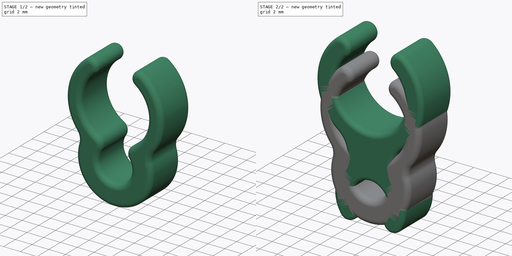
[diagram: build sequence overview — one tinted view per stage of 2, left to right]
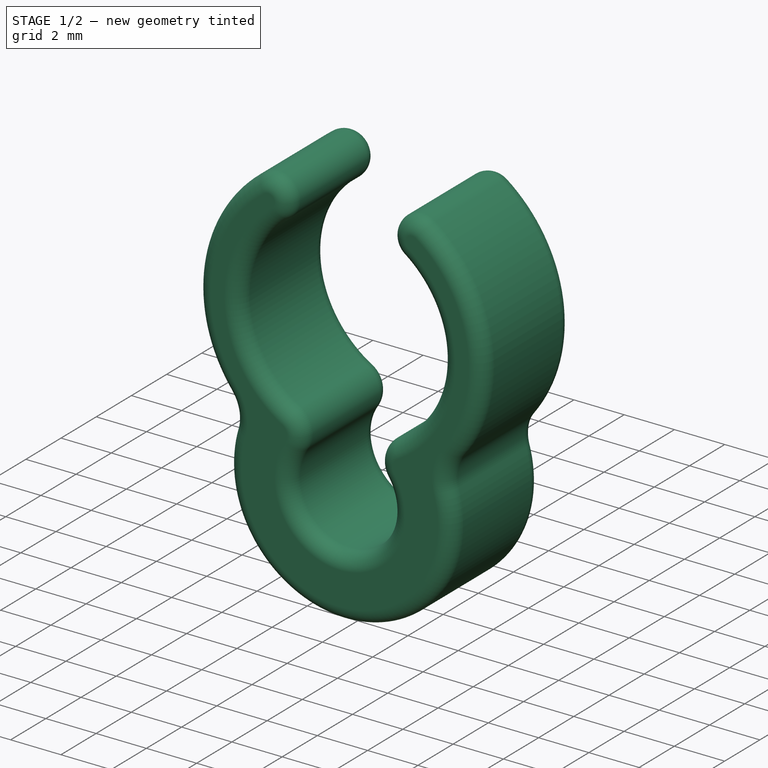
[diagram: stage 1 of 2 — iso view after this stage's code; geometry added in this stage tinted green]
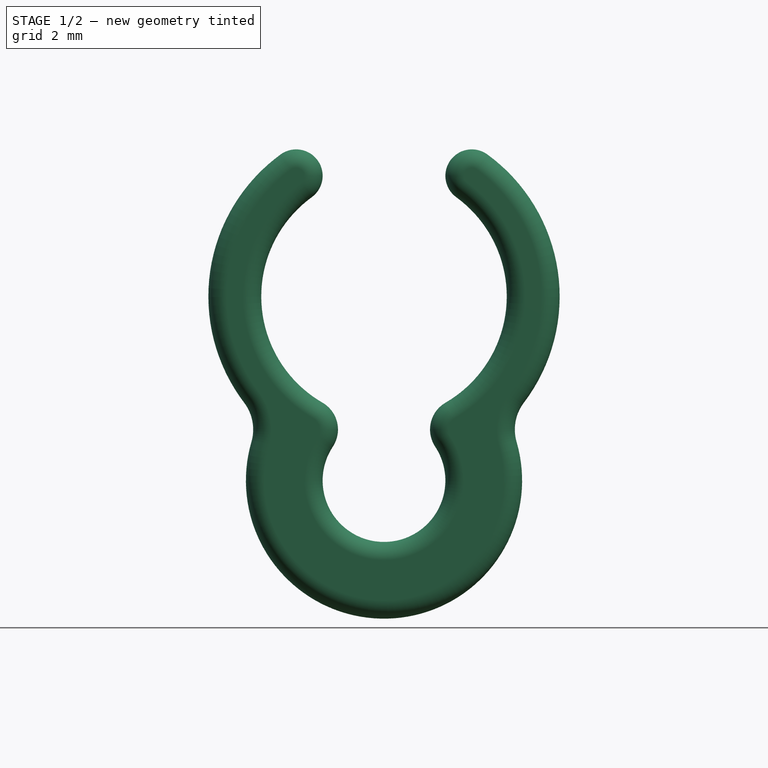
[diagram: stage 1 of 2 — front view after this stage's code; geometry added in this stage tinted green]
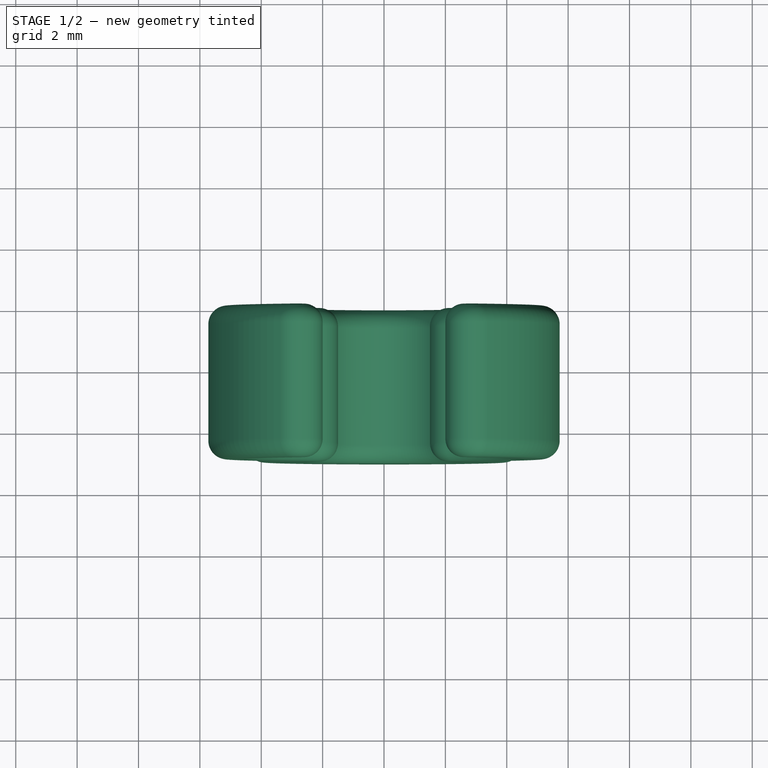
[diagram: stage 1 of 2 — top view after this stage's code; geometry added in this stage tinted green]
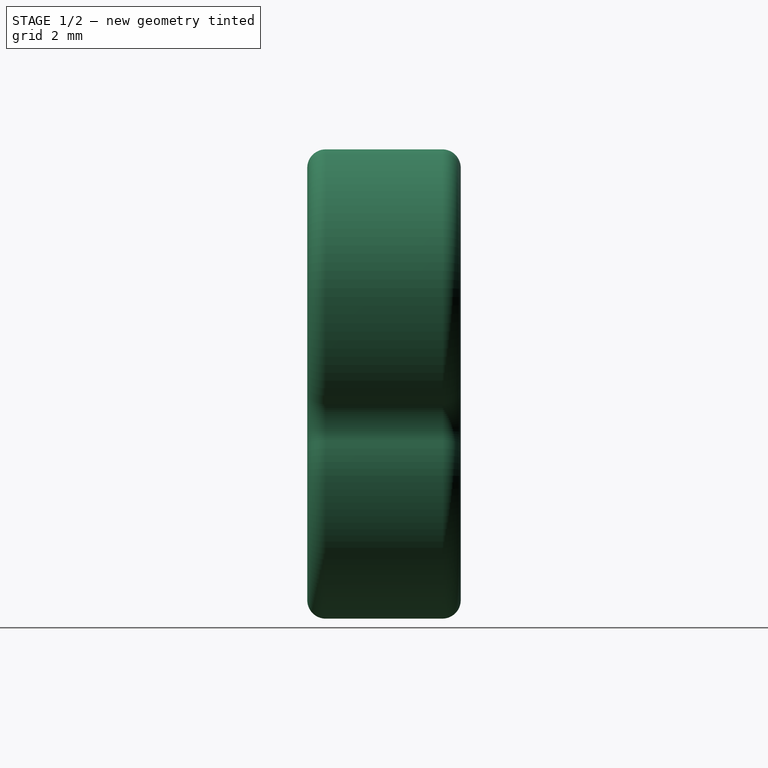
[diagram: stage 1 of 2 — right view after this stage's code; geometry added in this stage tinted green]
FCSTD DOCUMENT  (FreeCAD 1.0R39109 (Git))
Label: CableClip
License: All rights reserved
LicenseURL: https://en.wikipedia.org/wiki/All_rights_reserved
objects: Sketcher::SketchObject×2, PartDesign::Pad×2, PartDesign::Fillet×2, PartDesign::Body×2
note: 18 computed .brp shape members not serialized (recipe doc carries the construction recipe); baked Part::Feature solids carry a one-line shape summary decoded from their .brp

FEATURE [PartDesign::Body] Body
  AllowCompound = false
  Group = -> [Sketch,Pad,Fillet]
  Origin = -> Origin
  Tip = -> Fillet
FEATURE [Sketcher::SketchObject] Sketch001
  ArcFitTolerance = 1e-06
  AttachmentSupport = -> [XZ_Plane001]
  FullyConstrained = true
  MakeInternals = false
  MapMode = 5
  Placement = pos=(0,0,0) rot=(1,0,0;1.5708rad)
  sketch-geometry (20):
    g0: ArcOfCircle CenterX=-5e-16 CenterY=4 CenterZ=0 NormalX=0 NormalY=0 NormalZ=1 AngleXU=0 Radius=4 StartAngle=5.2375 EndAngle=7.22464
    g1: ArcOfCircle CenterX=0 CenterY=-2 CenterZ=0 NormalX=0 NormalY=0 NormalZ=1 AngleXU=0 Radius=2 StartAngle=2.55723 EndAngle=6.86755
    g2: ArcOfCircle CenterX=-2.51317 CenterY=-0.337722 CenterZ=0 NormalX=0 NormalY=0 NormalZ=1 AngleXU=0 Radius=1.01317 StartAngle=5.69882 EndAngle=7.32887
    g3: ArcOfCircle CenterX=2.51317 CenterY=-0.337722 CenterZ=0 NormalX=0 NormalY=0 NormalZ=1 AngleXU=0 Radius=1.01317 StartAngle=2.09591 EndAngle=3.72596
    g4: ArcOfCircle CenterX=-5e-16 CenterY=4 CenterZ=0 NormalX=0 NormalY=0 NormalZ=1 AngleXU=0 Radius=5.72328 StartAngle=5.63375 EndAngle=7.22464
    g5: ArcOfCircle CenterX=0 CenterY=-2 CenterZ=0 NormalX=0 NormalY=0 NormalZ=1 AngleXU=0 Radius=4.5 StartAngle=2.85843 EndAngle=6.56634
    g6: ArcOfCircle CenterX=-5.71273 CenterY=-0.337722 CenterZ=0 NormalX=0 NormalY=0 NormalZ=1 AngleXU=0 Radius=1.44966 StartAngle=6.00003 EndAngle=6.93262
    g7: ArcOfCircle CenterX=5.71273 CenterY=-0.337722 CenterZ=0 NormalX=0 NormalY=0 NormalZ=1 AngleXU=0 Radius=1.44966 StartAngle=2.49216 EndAngle=3.42475
    g8: GeomPoint X=-1.5 Y=-0.337722 Z=0
    g9: GeomPoint X=1.5 Y=-0.337722 Z=0
    g10: ArcOfCircle CenterX=-2.86164 CenterY=7.93021 CenterZ=0 NormalX=0 NormalY=0 NormalZ=1 AngleXU=0 Radius=0.861642 StartAngle=5.34174 EndAngle=8.48333
    g11: ArcOfCircle CenterX=2.86164 CenterY=7.93021 CenterZ=0 NormalX=0 NormalY=0 NormalZ=1 AngleXU=0 Radius=0.861642 StartAngle=0.94145 EndAngle=4.08304
    g12: ArcOfCircle CenterX=-5e-16 CenterY=4 CenterZ=0 NormalX=0 NormalY=0 NormalZ=1 AngleXU=0 Radius=5.72328 StartAngle=2.20014 EndAngle=3.79102
    g13: ArcOfCircle CenterX=-5e-16 CenterY=4 CenterZ=0 NormalX=0 NormalY=0 NormalZ=1 AngleXU=0 Radius=4 StartAngle=2.20014 EndAngle=4.18727
    g14: GeomPoint X=-2 Y=7.93021 Z=0
    g15: GeomPoint X=2 Y=7.93021 Z=0
    g16: Circle [constr] CenterX=-5e-16 CenterY=4 CenterZ=0 NormalX=0 NormalY=0 NormalZ=1 AngleXU=0 Radius=4
    g17: Circle [constr] CenterX=0 CenterY=-2 CenterZ=0 NormalX=0 NormalY=0 NormalZ=1 AngleXU=0 Radius=2
    g18: GeomPoint [constr] X=0 Y=0 Z=0
    g19: GeomPoint [constr] X=0 Y=0 Z=0
  constraints (46):
    c: Diameter(g1) = 4
    c: Diameter(g0) = 8
    c: Tangent(g0,g3) = 1.5708
    c: Tangent(g1,g3) = 1.5708
    c: Tangent(g1,g2) = 1.5708
    c: Horizontal(g2,g3)
    c: Horizontal(g1,g1)
    c: Coincident(g4,g0)
    c: PointOnObject(g8,g2)
    c: PointOnObject(g9,g3)
    c: Horizontal(g8,g2)
    c: Horizontal(g3,g9)
    c: Tangent(g5,g6) = 1.5708
    c: Coincident(g5,g1)
    c: DistanceX(g8,g9) = 3
    c: Tangent(g7,g4) = 1.5708
    c: Horizontal(g7,g6)
    c: Horizontal(g2,g6)
    c: Distance(g1,g5) = 2.5
    c: Equal(g4,g12)
    c: Coincident(g4,g12)
    c: Equal(g0,g13)
    c: Coincident(g0,g13)
    c: Tangent(g13,g10) = 1.5708
    c: Tangent(g10,g12) = -1.5708
    c: Tangent(g11,g4) = -1.5708
    c: Tangent(g11,g0) = 1.5708
    c: Horizontal(g11,g10)
    c: PointOnObject(g14,g10)
    c: PointOnObject(g15,g11)
    c: Horizontal(g10,g14)
    c: Horizontal(g11,g15)
    c: DistanceX(g14,g15) = 4
    c: Tangent(g6,g12) = 1.5708
    c: Tangent(g5,g7) = 1.5708
    c: Tangent(g13,g2) = 1.5708
    c: Coincident(g16,g0)
    c: Equal(g16,g0)
    c: Coincident(g17,g1)
    c: Equal(g17,g1)
    c: PointOnObject(g18,g16)
    c: PointOnObject(g19,g17)
    c: Vertical(g1,g19)
    c: Coincident(g18,g19)
    c: Horizontal(g6,g2)
    c: Coincident(g18,g-1)
FEATURE [PartDesign::Pad] Pad001
  Direction = (0,-1,2e-16)
  Length = 5
  Length2 = 10
  Placement = pos=(0,0,0) rot=(1,0,0;1.5708rad)
  Profile = -> Sketch001
  ReferenceAxis = -> Sketch001 [N_Axis]
  Refine = true
  Suppressed = false
  Type = 0
FEATURE [PartDesign::Fillet] Fillet001
  Base = -> Pad001 [Edge1,Edge2,Edge3,Edge4,Edge5,Edge6,Edge7,Edge8,Edge9,Edge10,Edge11,Edge12,Edge13,Edge14,Edge15,Edge16,Edge17,Edge18,Edge19,Edge20,Edge21,Edge22,Edge23,Edge24,Edge25,Edge26,Edge27,Edge28,Edge29,Edge30,Edge31,Edge32,Edge33,Edge34,Edge35,Edge36]
  BaseFeature = -> Pad001
  Placement = pos=(0,0,0) rot=(1,0,0;1.5708rad)
  Radius = 0.6
  Refine = true
  SupportTransform = false
  Suppressed = false
  UseAllEdges = true
FEATURE [PartDesign::Body] Body001
  AllowCompound = false
  Group = -> [Sketch001,Pad001,Fillet001]
  Origin = -> Origin001
  Tip = -> Fillet001
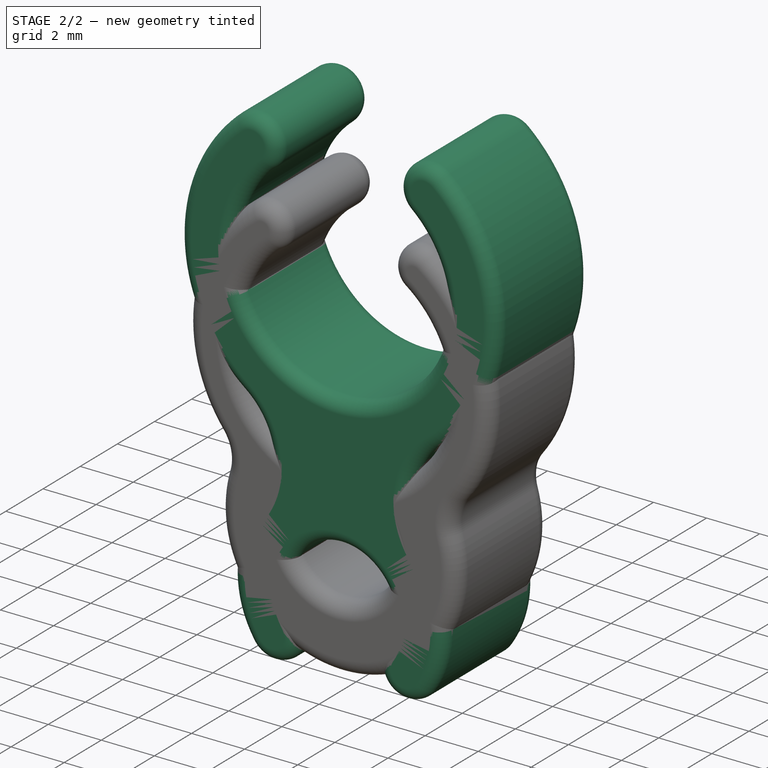
[diagram: stage 2 of 2 — iso view after this stage's code; geometry added in this stage tinted green]
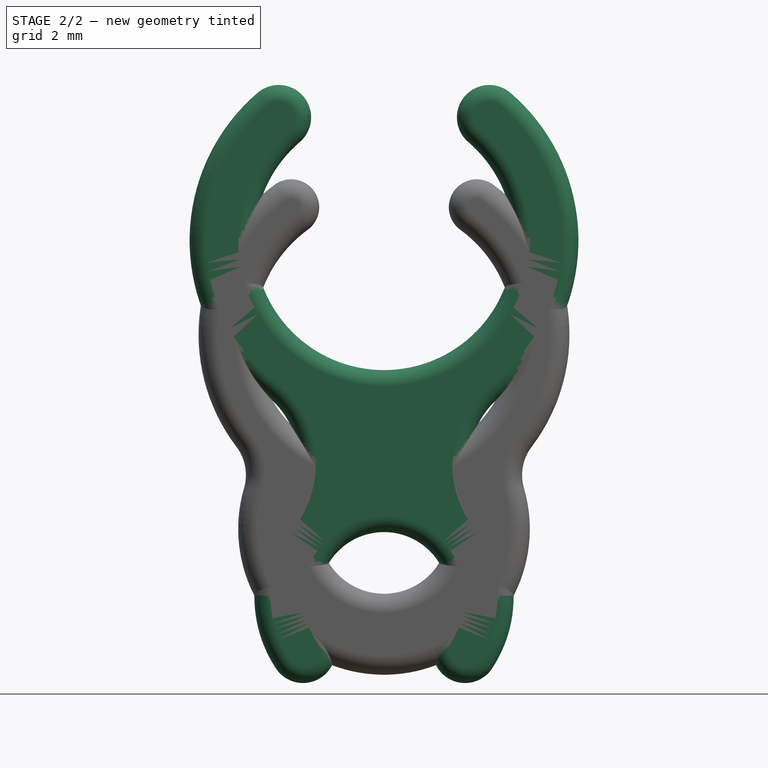
[diagram: stage 2 of 2 — front view after this stage's code; geometry added in this stage tinted green]
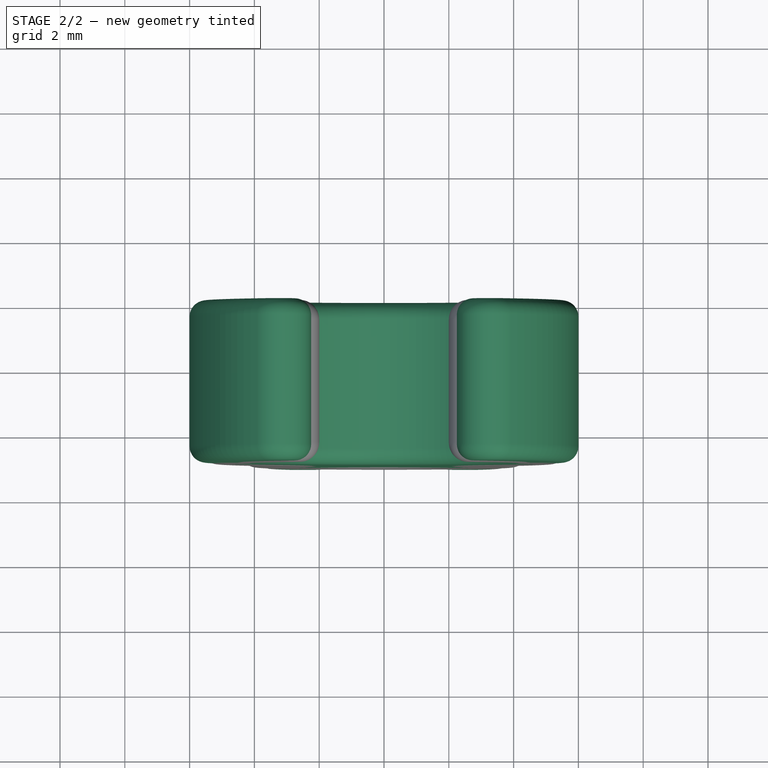
[diagram: stage 2 of 2 — top view after this stage's code; geometry added in this stage tinted green]
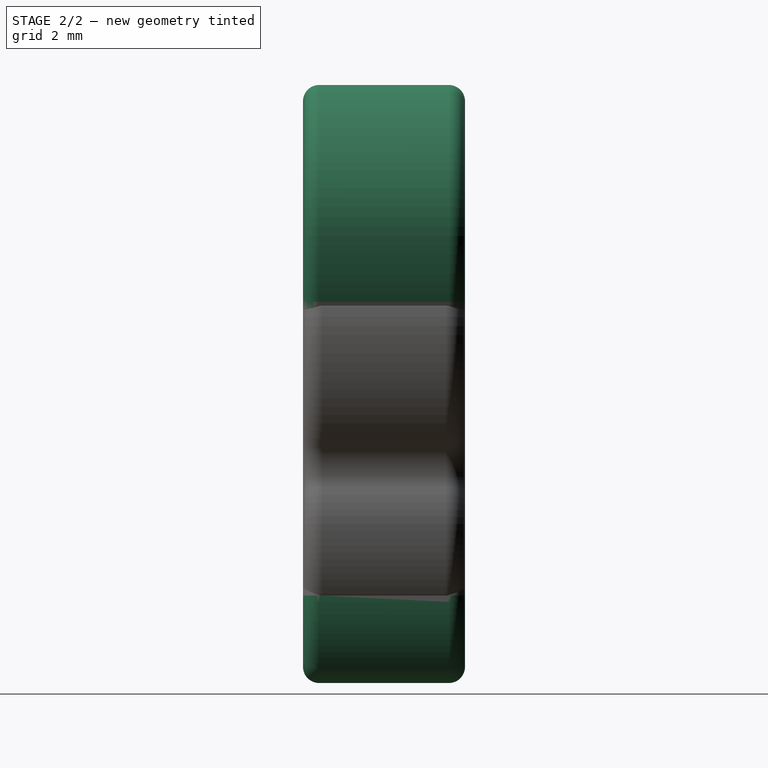
[diagram: stage 2 of 2 — right view after this stage's code; geometry added in this stage tinted green]
FEATURE [Sketcher::SketchObject] Sketch
  ArcFitTolerance = 1e-06
  AttachmentSupport = -> [XZ_Plane]
  FullyConstrained = true
  MakeInternals = false
  MapMode = 5
  Placement = pos=(0,0,0) rot=(1,0,0;1.5708rad)
  sketch-geometry (18):
    g0: ArcOfCircle CenterX=0 CenterY=-4.09752 CenterZ=0 NormalX=0 NormalY=0 NormalZ=1 AngleXU=0 Radius=2 StartAngle=5.6975 EndAngle=10.0105
    g1: ArcOfCircle CenterX=-3e-16 CenterY=-4.09752 CenterZ=0 NormalX=0 NormalY=0 NormalZ=1 AngleXU=0 Radius=4 StartAngle=5.6975 EndAngle=6.93966
    g2: ArcOfCircle CenterX=2e-16 CenterY=6.90248 CenterZ=0 NormalX=0 NormalY=0 NormalZ=1 AngleXU=0 Radius=4 StartAngle=2.27838 EndAngle=7.1464
    g3: ArcOfCircle CenterX=2e-16 CenterY=6.90248 CenterZ=0 NormalX=0 NormalY=0 NormalZ=1 AngleXU=0 Radius=6 StartAngle=2.27838 EndAngle=4.05591
    g4: ArcOfCircle CenterX=-3.25 CenterY=10.7021 CenterZ=0 NormalX=0 NormalY=0 NormalZ=1 AngleXU=0 Radius=1 StartAngle=5.41997 EndAngle=8.56157
    g5: ArcOfCircle CenterX=3.25 CenterY=10.7021 CenterZ=0 NormalX=0 NormalY=0 NormalZ=1 AngleXU=0 Radius=1 StartAngle=0.863212 EndAngle=4.0048
    g6: ArcOfCircle CenterX=-2.5 CenterY=-5.75584 CenterZ=0 NormalX=0 NormalY=0 NormalZ=1 AngleXU=0 Radius=1 StartAngle=3.72728 EndAngle=6.86887
    g7: ArcOfCircle CenterX=2.5 CenterY=-5.75584 CenterZ=0 NormalX=0 NormalY=0 NormalZ=1 AngleXU=0 Radius=1 StartAngle=2.55591 EndAngle=5.6975
    g8: ArcOfCircle CenterX=-5.31818 CenterY=0 CenterZ=0 NormalX=0 NormalY=0 NormalZ=1 AngleXU=0 Radius=2.71362 StartAngle=5.62671 EndAngle=7.19751
    g9: ArcOfCircle CenterX=5.31818 CenterY=0 CenterZ=0 NormalX=0 NormalY=0 NormalZ=1 AngleXU=0 Radius=2.71362 StartAngle=2.22727 EndAngle=3.79807
    g10: ArcOfCircle CenterX=0 CenterY=-4.09752 CenterZ=0 NormalX=0 NormalY=0 NormalZ=1 AngleXU=0 Radius=4 StartAngle=2.48512 EndAngle=3.72728
    g11: ArcOfCircle CenterX=-2e-15 CenterY=6.90248 CenterZ=0 NormalX=0 NormalY=0 NormalZ=1 AngleXU=0 Radius=6 StartAngle=5.36887 EndAngle=7.1464
    g12: GeomPoint X=-1.5 Y=-5.75584 Z=0
    g13: GeomPoint X=1.5 Y=-5.75584 Z=0
    g14: GeomPoint X=-2.25 Y=10.7021 Z=0
    g15: GeomPoint X=2.25 Y=10.7021 Z=0
    g16: LineSegment [constr] StartX=2.6 StartY=9.94221 StartZ=0 EndX=3.9 EndY=11.4621 EndZ=0
    g17: LineSegment [constr] StartX=-3.33333 StartY=-6.30861 StartZ=0 EndX=-1.66667 EndY=-5.20306 EndZ=0
  constraints (42):
    c: Diameter(g2) = 8
    c: Diameter(g0) = 4
    c: Symmetric(g6,g7,g-2)
    c: Symmetric(g8,g9,g-2)
    c: Symmetric(g4,g5,g-2)
    c: Tangent(g3,g8) = 1.5708
    c: Tangent(g8,g10) = 1.5708
    c: Tangent(g9,g11) = 1.5708
    c: Tangent(g9,g1) = 1.5708
    c: Tangent(g6,g10) = -1.5708
    c: Tangent(g6,g0) = 1.5708
    c: Tangent(g0,g7) = 1.5708
    c: Tangent(g1,g7) = -1.5708
    c: Tangent(g11,g5) = -1.5708
    c: Tangent(g2,g5) = 1.5708
    c: Tangent(g2,g4) = 1.5708
    c: Tangent(g4,g3) = -1.5708
    c: Horizontal(g3,g9)
    c: Symmetric(g8,g1,g-2)
    c: Horizontal(g2,g2)
    c: Coincident(g3,g2)
    c: Coincident(g10,g0)
    c: PointOnObject(g0,g-2)
    c: Distance(g0,g2) = 5
    c: PointOnObject(g8,g-1)
    c: Angle(g9) = 1.5708
    c: PointOnObject(g12,g6)
    c: PointOnObject(g13,g7)
    c: Horizontal(g12,g6)
    c: Horizontal(g13,g7)
    c: DistanceX(g12,g13) = 3
    c: PointOnObject(g14,g4)
    c: PointOnObject(g15,g5)
    c: Horizontal(g15,g5)
    c: Horizontal(g14,g4)
    c: DistanceX(g14,g15) = 4.5
    c: Coincident(g16,g2)
    c: Coincident(g16,g5)
    c: Coincident(g17,g6)
    c: Coincident(g17,g0)
    c: Equal(g17,g16)
    c: Distance(g16,g16) = 2
FEATURE [PartDesign::Pad] Pad
  Direction = (0,-1,2e-16)
  Length = 5
  Length2 = 10
  Placement = pos=(0,0,0) rot=(1,0,0;1.5708rad)
  Profile = -> Sketch
  ReferenceAxis = -> Sketch [N_Axis]
  Refine = true
  Suppressed = false
  Type = 0
FEATURE [PartDesign::Fillet] Fillet
  Base = -> Pad [Edge1,Edge2,Edge3,Edge4,Edge5,Edge6,Edge7,Edge8,Edge9,Edge10,Edge11,Edge12,Edge13,Edge14,Edge15,Edge16,Edge17,Edge18,Edge19,Edge20,Edge21,Edge22,Edge23,Edge24,Edge25,Edge26,Edge27,Edge28,Edge29,Edge30,Edge31,Edge32,Edge33,Edge34,Edge35,Edge36]
  BaseFeature = -> Pad
  Placement = pos=(0,0,0) rot=(1,0,0;1.5708rad)
  Radius = 0.5
  Refine = true
  SupportTransform = false
  Suppressed = false
  UseAllEdges = true
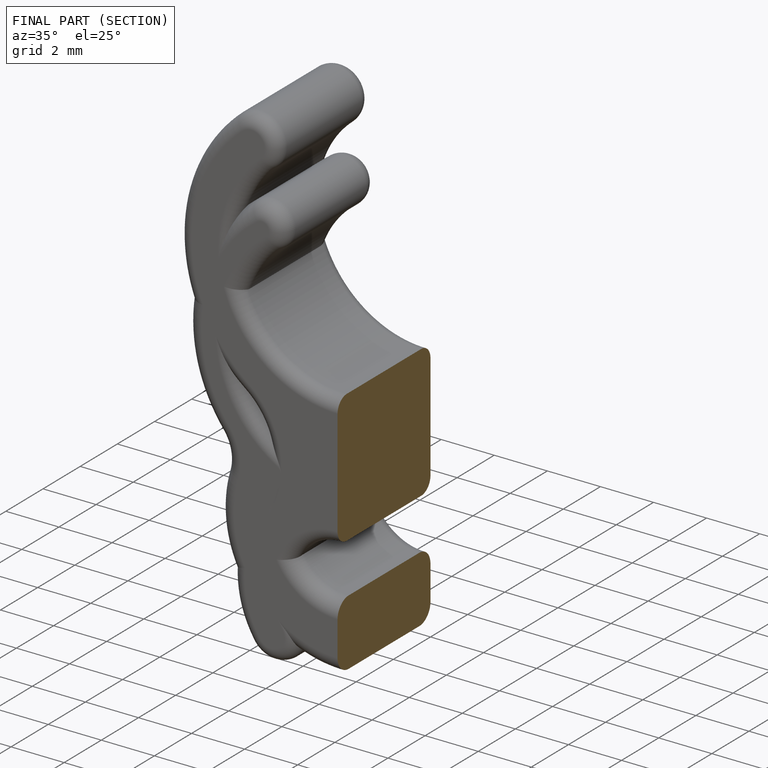
[diagram: finished part — half-section view (interior)]
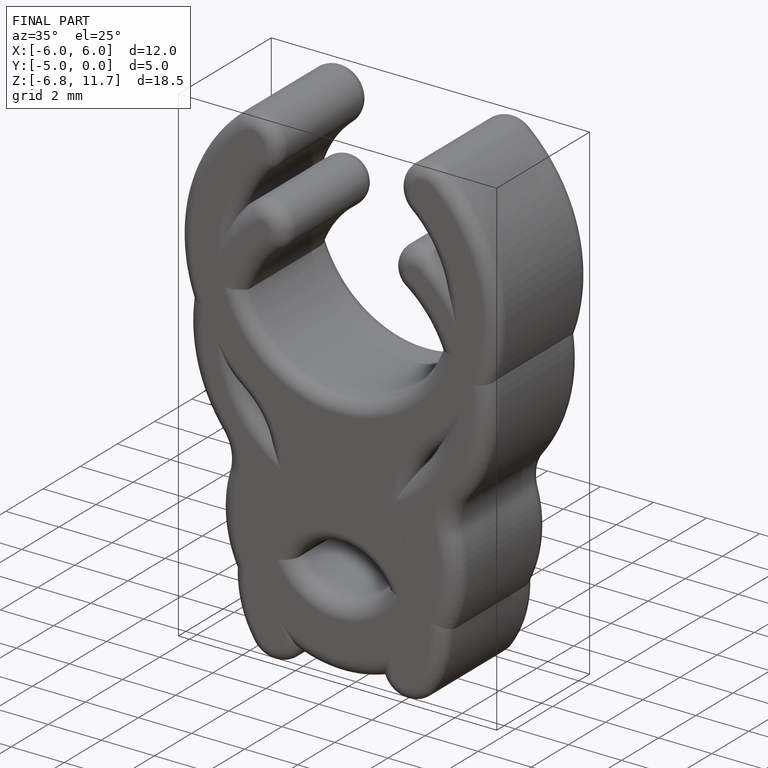
[diagram: finished part — iso view with bounding-box wireframe]
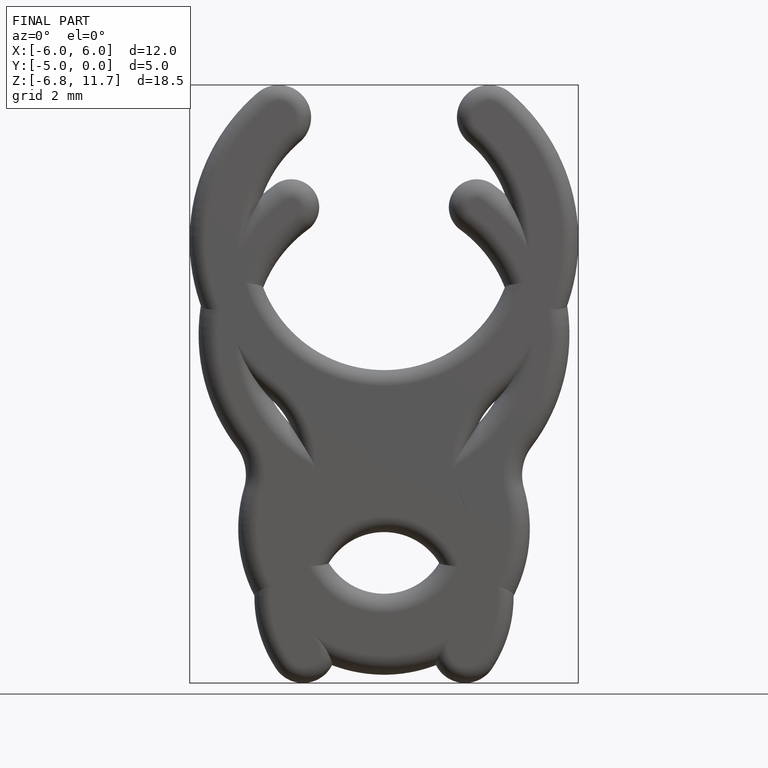
[diagram: finished part — front view with bounding-box wireframe]
